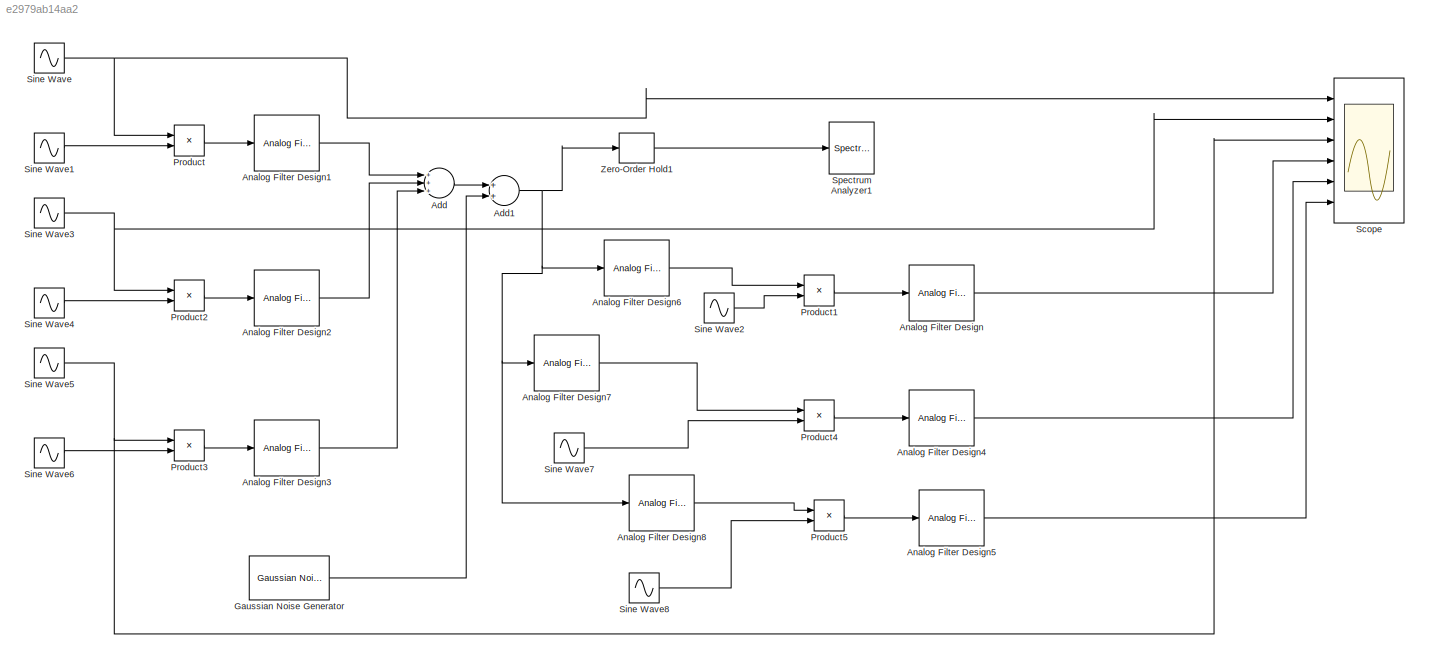
MODEL slx_e2979ab14aa2
KIND model
BLOCK [Sum] Add
  InputSameDT = off
  Inputs = +++
  OutDataTypeStr = Inherit: Inherit via internal rule
  Ports = [3, 1]
  SaturateOnIntegerOverflow = off
BLOCK [Sum] Add1
  InputSameDT = off
  OutDataTypeStr = Inherit: Inherit via internal rule
  Ports = [2, 1]
  SaturateOnIntegerOverflow = off
BLOCK [Reference] Analog Filter Design  REF=dsparch4/Analog
Filter Design
  N = 8
  Ports = [1, 1]
  Rp = 2
  Rs = 40
  SourceBlock = dsparch4/Analog\nFilter Design
  SourceType = Analog Filter Design
  Whi = 80
  Wlo = 15*6.28
  filttype = Lowpass
  method = Butterworth
BLOCK [Reference] Analog Filter Design1  REF=dsparch4/Analog
Filter Design
  N = 8
  Ports = [1, 1]
  Rp = 2
  Rs = 40
  SourceBlock = dsparch4/Analog\nFilter Design
  SourceType = Analog Filter Design
  Whi = 195*6.28
  Wlo = 185*6.28
  filttype = Bandpass
  method = Butterworth
BLOCK [Reference] Analog Filter Design2  REF=dsparch4/Analog
Filter Design
  N = 8
  Ports = [1, 1]
  Rp = 2
  Rs = 40
  SourceBlock = dsparch4/Analog\nFilter Design
  SourceType = Analog Filter Design
  Whi = 285*6.28
  Wlo = 275*6.28
  filttype = Bandpass
  method = Butterworth
BLOCK [Reference] Analog Filter Design3  REF=dsparch4/Analog
Filter Design
  N = 8
  Ports = [1, 1]
  Rp = 2
  Rs = 40
  SourceBlock = dsparch4/Analog\nFilter Design
  SourceType = Analog Filter Design
  Whi = 375*6.28
  Wlo = 365*6.28
  filttype = Bandpass
  method = Butterworth
BLOCK [Reference] Analog Filter Design4  REF=dsparch4/Analog
Filter Design
  N = 8
  Ports = [1, 1]
  Rp = 2
  Rs = 40
  SourceBlock = dsparch4/Analog\nFilter Design
  SourceType = Analog Filter Design
  Whi = 80
  Wlo = 25*6.28
  filttype = Lowpass
  method = Butterworth
BLOCK [Reference] Analog Filter Design5  REF=dsparch4/Analog
Filter Design
  N = 8
  Ports = [1, 1]
  Rp = 2
  Rs = 40
  SourceBlock = dsparch4/Analog\nFilter Design
  SourceType = Analog Filter Design
  Whi = 80
  Wlo = 35*6.28
  filttype = Lowpass
  method = Butterworth
BLOCK [Reference] Analog Filter Design6  REF=dsparch4/Analog
Filter Design
  N = 8
  Ports = [1, 1]
  Rp = 2
  Rs = 40
  SourceBlock = dsparch4/Analog\nFilter Design
  SourceType = Analog Filter Design
  Whi = 195*6.28
  Wlo = 185*6.28
  filttype = Bandpass
  method = Butterworth
BLOCK [Reference] Analog Filter Design7  REF=dsparch4/Analog
Filter Design
  N = 8
  Ports = [1, 1]
  Rp = 2
  Rs = 40
  SourceBlock = dsparch4/Analog\nFilter Design
  SourceType = Analog Filter Design
  Whi = 285*6.28
  Wlo = 275*6.28
  filttype = Bandpass
  method = Butterworth
BLOCK [Reference] Analog Filter Design8  REF=dsparch4/Analog
Filter Design
  N = 8
  Ports = [1, 1]
  Rp = 2
  Rs = 40
  SourceBlock = dsparch4/Analog\nFilter Design
  SourceType = Analog Filter Design
  Whi = 375*6.28
  Wlo = 365*6.28
  filttype = Bandpass
  method = Butterworth
BLOCK [Reference] Gaussian Noise Generator  REF=commnoisgen2/Gaussian Noise
Generator
  Ports = [0, 1]
  SourceBlock = commnoisgen2/Gaussian Noise\nGenerator
  SourceType = Gaussian Noise Generator
  Ts = 1/1000
  d = 0
  frameBased = off
  m = 0
  orient = off
  outDataType = double
  s = 41
  sampPerFrame = 1
BLOCK [Product] Product
  InputSameDT = off
  OutDataTypeStr = Inherit: Inherit via internal rule
  Ports = [2, 1]
  RndMeth = Floor
  SaturateOnIntegerOverflow = off
BLOCK [Product] Product1
  InputSameDT = off
  OutDataTypeStr = Inherit: Inherit via internal rule
  Ports = [2, 1]
  RndMeth = Floor
  SaturateOnIntegerOverflow = off
BLOCK [Product] Product2
  InputSameDT = off
  OutDataTypeStr = Inherit: Inherit via internal rule
  Ports = [2, 1]
  RndMeth = Floor
  SaturateOnIntegerOverflow = off
BLOCK [Product] Product3
  InputSameDT = off
  OutDataTypeStr = Inherit: Inherit via internal rule
  Ports = [2, 1]
  RndMeth = Floor
  SaturateOnIntegerOverflow = off
BLOCK [Product] Product4
  InputSameDT = off
  OutDataTypeStr = Inherit: Inherit via internal rule
  Ports = [2, 1]
  RndMeth = Floor
  SaturateOnIntegerOverflow = off
BLOCK [Product] Product5
  InputSameDT = off
  OutDataTypeStr = Inherit: Inherit via internal rule
  Ports = [2, 1]
  RndMeth = Floor
  SaturateOnIntegerOverflow = off
BLOCK [Scope] Scope
  Floating = off
  NumInputPorts = 6
  Ports = [6]
  ShowLegends = off
  YMax = 5~5~5~5~5~5
  YMin = -5~-5~-5~-5~-5~-5
  ZoomMode = xonly
BLOCK [Sin] Sine Wave
  Frequency = 10*6.28
  Ports = [0, 1]
  SampleTime = 0
BLOCK [Sin] Sine Wave1
  Frequency = 200*6.28
  Ports = [0, 1]
  SampleTime = 0
BLOCK [Sin] Sine Wave2
  Frequency = 200*6.28
  Ports = [0, 1]
  SampleTime = 0
BLOCK [Sin] Sine Wave3
  Frequency = 20*6.28
  Ports = [0, 1]
  SampleTime = 0
BLOCK [Sin] Sine Wave4
  Frequency = 300*6.28
  Ports = [0, 1]
  SampleTime = 0
BLOCK [Sin] Sine Wave5
  Frequency = 30*6.28
  Ports = [0, 1]
  SampleTime = 0
BLOCK [Sin] Sine Wave6
  Frequency = 400*6.28
  Ports = [0, 1]
  SampleTime = 0
BLOCK [Sin] Sine Wave7
  Frequency = 300*6.28
  Ports = [0, 1]
  SampleTime = 0
BLOCK [Sin] Sine Wave8
  Frequency = 400*6.28
  Ports = [0, 1]
  SampleTime = 0
BLOCK [SpectrumAnalyzer] Spectrum Analyzer1
  Ports = [1]
  ScopeSpecificationString = spbscopes.SpectrumAnalyzerBlockCfg('CurrentConfiguration', extmgr.ConfigurationSet(extmgr.Configuration('Core','General UI',true),extmgr.Configuration('Core','Source UI',true),extmgr.Configuration('Sources','WiredSimulink',true),extmgr.Configuration('Visuals','Spectrum',true,'AxesProperties',struct('Color',[0 0 0],'XColor',[0.686274509803922 0.686274509803922 0.686274509803922],'YColor',[0.6862745...<+5860ch>
BLOCK [ZeroOrderHold] Zero-Order Hold1
  SampleTime = 1/1000
NET Add1:1 -> Analog Filter Design6:1, Analog Filter Design7:1, Analog Filter Design8:1, Zero-Order Hold1:1
LINE Add:1 -> Add1:1
LINE Analog Filter Design1:1 -> Add:1
LINE Analog Filter Design2:1 -> Add:2
LINE Analog Filter Design3:1 -> Add:3
LINE Analog Filter Design4:1 -> Scope:5
LINE Analog Filter Design5:1 -> Scope:6
LINE Analog Filter Design6:1 -> Product1:1
LINE Analog Filter Design7:1 -> Product4:1
LINE Analog Filter Design8:1 -> Product5:1
LINE Analog Filter Design:1 -> Scope:4
LINE Gaussian Noise Generator:1 -> Add1:2
LINE Product1:1 -> Analog Filter Design:1
LINE Product2:1 -> Analog Filter Design2:1
LINE Product3:1 -> Analog Filter Design3:1
LINE Product4:1 -> Analog Filter Design4:1
LINE Product5:1 -> Analog Filter Design5:1
LINE Product:1 -> Analog Filter Design1:1
LINE Sine Wave1:1 -> Product:2
LINE Sine Wave2:1 -> Product1:2
NET Sine Wave3:1 -> Product2:1, Scope:2
LINE Sine Wave4:1 -> Product2:2
NET Sine Wave5:1 -> Product3:1, Scope:3
LINE Sine Wave6:1 -> Product3:2
LINE Sine Wave7:1 -> Product4:2
LINE Sine Wave8:1 -> Product5:2
NET Sine Wave:1 -> Product:1, Scope:1
LINE Zero-Order Hold1:1 -> Spectrum Analyzer1:1
note: NET lines group one-source signal fan-out (src -> all destinations, sorted); 1:1 wires keep LINE
